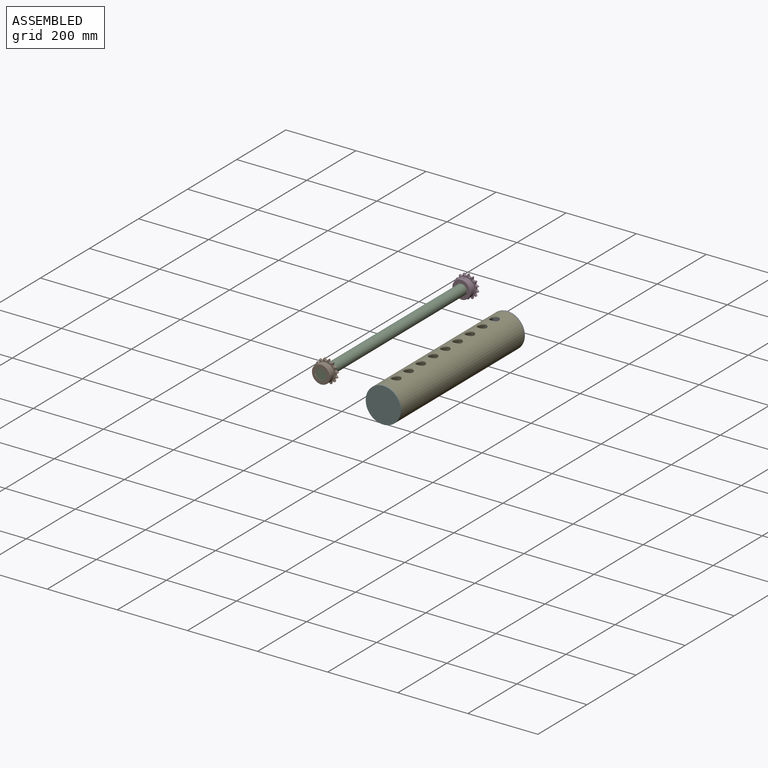
[diagram: assembled view]
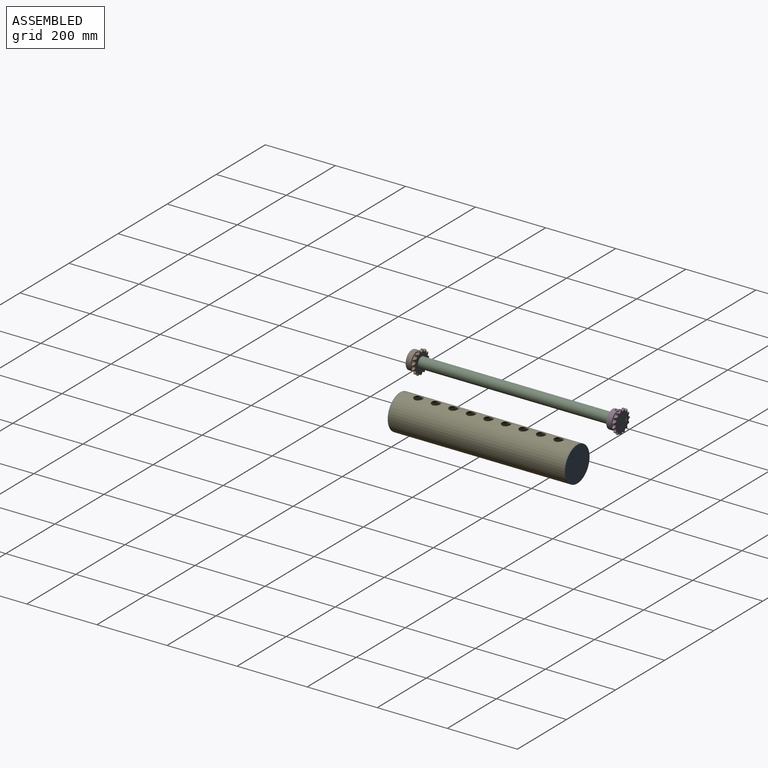
[diagram: assembled view, second angle]
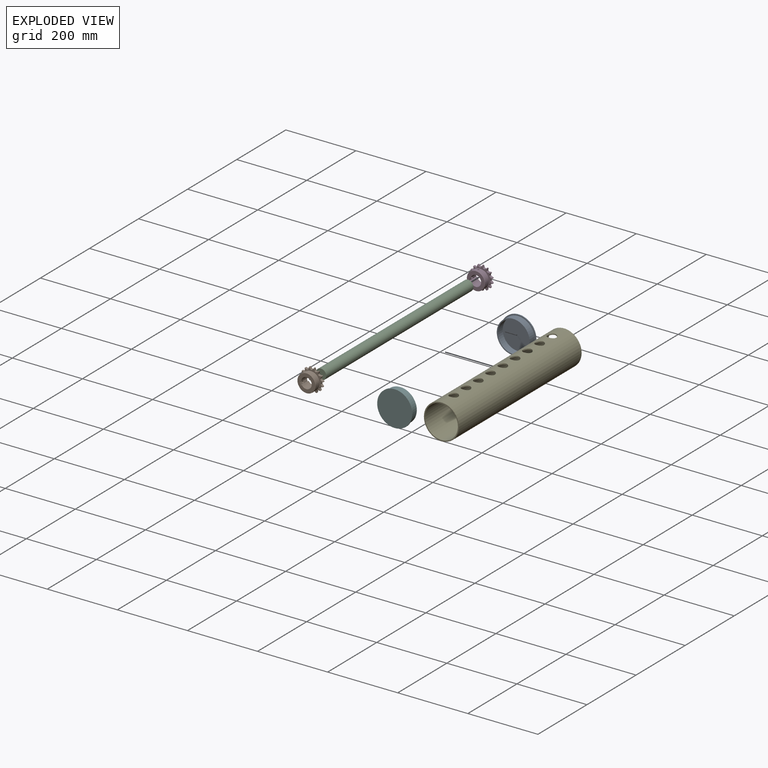
[diagram: exploded view]
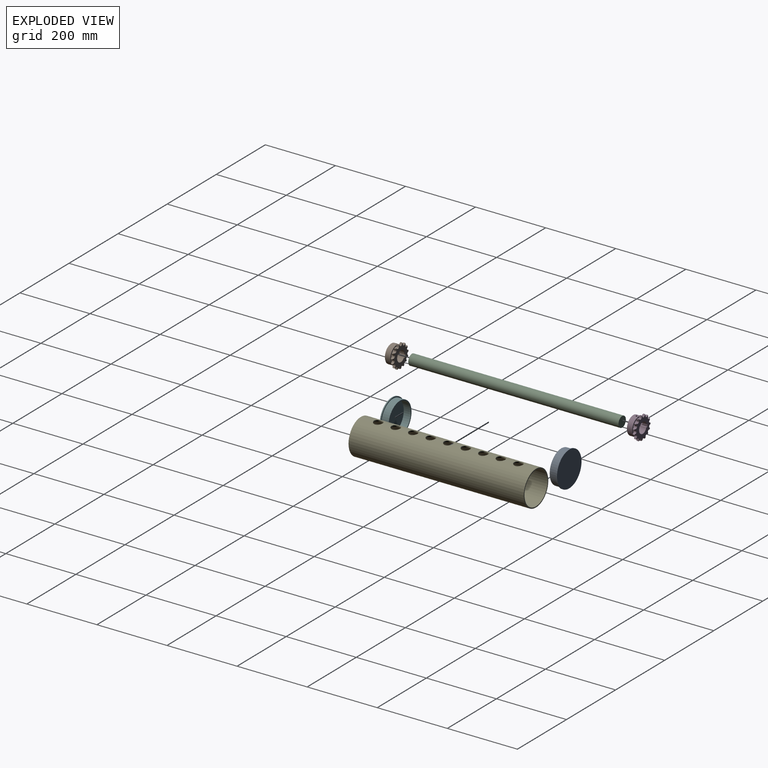
[diagram: exploded view, second angle]
ASSEMBLY  parts=6 mates=4
PART A: 7 faces, bbox 100x23x100 mm
  f0: cylinder r=50mm len=100mm, axis (0,1,0), area 942.5mm2, adj f1,f2
  f1: plane 100x100mm, normal (0,-1,0), area 914.2mm2, adj f0,f4
  f2: plane 100x100mm, normal (0,1,0), area 7854mm2, adj f0
  f3: cylinder r=44mm len=88mm, axis (0,1,0), area 5529.2mm2, adj f5,f6
  f4: cylinder r=47mm len=94mm, axis (0,1,0), area 5906.2mm2, adj f1,f5
  f5: plane 94x94mm, normal (0,-1,0), area 857.7mm2, adj f3,f4
  f6: plane 88x88mm, normal (0,-1,0), area 6082.1mm2, adj f3
PART B: 138 faces, bbox 28.1x69.7x69.4 mm
  f0: cylinder r=26mm len=52mm, axis (-1,0,0), area 2412.4mm2, adj f6,f24,f108,f109
  f1: cone r=32.95mm half-angle=61.6deg, axis (1,0,0), area 6.8mm2, adj f13,f18,f20,f27
  f2: plane 7.26x2.4mm, normal (0,-0.39,0.92), area 15.2mm2, adj f3,f5,f105,f111
  f3: plane 7.2x2.94mm, normal (0,-0.48,0.88), area 24.1mm2, adj f2,f4,f20,f80
  f4: plane 61.01x60.71mm, normal (1,0,0), area 921.5mm2, adj f3,f5,f12,f25,f26,f28,f30,f32
  f5: torus R=25.6mm, axis (1,0,0), area 6.8mm2, adj f2,f4,f11,f105
  f6: cone r=2.46mm half-angle=45deg, axis (0,0,1), area 10mm2, adj f0,f8
  f7: cylinder r=2.46mm len=10.66mm, axis (0,-1,0), area 164.7mm2, adj f21,f24
  f8: cylinder r=2.46mm len=6.62mm, axis (0,0,-1), area 102.2mm2, adj f6,f9
  f9: cone r=3mm half-angle=45deg, axis (0,0,-1), area 13.1mm2, adj f8,f17
  f10: plane 7.26x2.15mm, normal (0,-0.57,-0.82), area 15.2mm2, adj f79,f113,f121,f122
  f11: plane 7.26x2.56mm, normal (0,-0.19,-0.98), area 15.2mm2, adj f5,f12,f105,f111
  f12: plane 7.2x3.21mm, normal (0,-0.28,-0.96), area 24.1mm2, adj f4,f11,f20,f104
  f13: plane 7.26x1.91mm, normal (0,-0.73,0.68), area 15.2mm2, adj f1,f18,f25,f26
  f14: cone r=15mm half-angle=45deg, axis (1,0,0), area 43.6mm2, adj f15,f16,f21,f110
  f15: plane 28x3.84mm, normal (0,-1,0), area 107.5mm2, adj f14,f17,f19,f20,f21,f110
  f16: plane 28x3.84mm, normal (0,1,0), area 107.5mm2, adj f14,f17,f19,f20,f21,f110
  f17: plane 28x8mm, normal (0,0,-1), area 195.7mm2, adj f9,f15,f16,f20,f110
  f18: cylinder r=32.95mm len=4.6mm, axis (-1,0,0), area 7.9mm2, adj f1,f13,f25,f27
  f19: cone r=15.35mm half-angle=45deg, axis (-1,0,0), area 43.6mm2, adj f15,f16,f20,f21
  f20: plane 61.01x60.71mm, normal (-1,0,0), area 1746.3mm2, adj f1,f3,f12,f15,f16,f17,f19,f26
  f21: cylinder r=15mm len=30mm, axis (-1,0,0), area 2332.2mm2, adj f7,f14,f15,f16,f19
  f22: cylinder r=32.95mm len=4.6mm, axis (-1,0,0), area 7.9mm2, adj f65,f67,f106,f112
  f23: cylinder r=32.95mm len=4.6mm, axis (-1,0,0), area 7.9mm2, adj f29,f31,f90,f91
  f24: cone r=2.46mm half-angle=45deg, axis (0,1,0), area 11.6mm2, adj f0,f7
  f25: torus R=25.6mm, axis (1,0,0), area 6.8mm2, adj f4,f13,f18,f27
  f26: plane 7.2x2.66mm, normal (0,-0.79,0.61), area 24.1mm2, adj f4,f13,f20,f104
  f27: plane 7.26x2.53mm, normal (0,0.23,-0.97), area 15.2mm2, adj f1,f18,f25,f28
  f28: plane 7.2x3.32mm, normal (0,0.13,-0.99), area 24.1mm2, adj f4,f20,f27,f103
  f29: plane 7.26x2.46mm, normal (0,-0.94,0.33), area 15.2mm2, adj f23,f30,f90,f91
  f30: plane 7.2x3.25mm, normal (0,-0.97,0.23), area 24.1mm2, adj f4,f20,f29,f103
  f31: plane 7.26x2.08mm, normal (0,0.6,-0.8), area 15.2mm2, adj f23,f32,f90,f91
  f32: plane 7.2x2.85mm, normal (0,0.52,-0.85), area 24.1mm2, adj f4,f20,f31,f102
  f33: plane 7.26x2.59mm, normal (0,-1,-0.08), area 15.2mm2, adj f34,f123,f127,f137
  f34: plane 7.2x3.29mm, normal (0,-0.98,-0.18), area 24.1mm2, adj f4,f20,f33,f102
  f35: plane 7.26x2.29mm, normal (0,0.88,-0.48), area 15.2mm2, adj f36,f123,f127,f137
  f36: plane 7.2x2.76mm, normal (0,0.82,-0.57), area 24.1mm2, adj f4,f20,f35,f101
  f37: plane 7.26x2.29mm, normal (0,-0.88,-0.48), area 15.2mm2, adj f38,f128,f130,f131
  f38: plane 7.2x2.76mm, normal (0,-0.82,-0.57), area 24.1mm2, adj f4,f20,f37,f101
  f39: plane 7.26x2.59mm, normal (0,1,-0.08), area 15.2mm2, adj f40,f128,f130,f131
  f40: plane 7.2x3.29mm, normal (0,0.98,-0.18), area 24.1mm2, adj f4,f20,f39,f100
  f41: plane 7.26x2.08mm, normal (0,-0.6,-0.8), area 15.2mm2, adj f42,f129,f132,f133
  f42: plane 7.2x2.85mm, normal (0,-0.52,-0.85), area 24.1mm2, adj f4,f20,f41,f100
  f43: plane 7.26x2.46mm, normal (0,0.94,0.33), area 15.2mm2, adj f44,f129,f132,f133
  f44: plane 7.2x3.25mm, normal (0,0.97,0.23), area 24.1mm2, adj f4,f20,f43,f99
  f45: plane 7.26x2.53mm, normal (0,-0.23,-0.97), area 15.2mm2, adj f46,f92,f93,f134
  f46: plane 7.2x3.32mm, normal (0,-0.13,-0.99), area 24.1mm2, adj f4,f20,f45,f99
  f47: plane 7.26x1.91mm, normal (0,0.73,0.68), area 15.2mm2, adj f48,f92,f93,f134
  f48: plane 7.2x2.66mm, normal (0,0.79,0.61), area 24.1mm2, adj f4,f20,f47,f94
  f49: plane 7.26x2.56mm, normal (0,0.19,-0.98), area 15.2mm2, adj f50,f95,f96,f97
  f50: plane 7.2x3.21mm, normal (0,0.28,-0.96), area 24.1mm2, adj f4,f20,f49,f94
  f51: plane 7.26x2.4mm, normal (0,0.39,0.92), area 15.2mm2, adj f52,f95,f96,f97
  f52: plane 7.2x2.94mm, normal (0,0.48,0.88), area 24.1mm2, adj f4,f20,f51,f98
  f53: plane 7.26x2.15mm, normal (0,0.57,-0.82), area 15.2mm2, adj f54,f84,f85,f86
  f54: plane 7.2x2.54mm, normal (0,0.65,-0.76), area 24.1mm2, adj f4,f20,f53,f98
  f55: plane 7.26x2.6mm, normal (0,-0.02,1), area 15.2mm2, adj f56,f84,f85,f86
  f56: plane 7.2x3.33mm, normal (0,0.08,1), area 24.1mm2, adj f4,f20,f55,f135
  f57: plane 7.26x2.23mm, normal (0,0.86,-0.52), area 15.2mm2, adj f58,f87,f88,f126
  f58: plane 7.2x3.02mm, normal (0,0.9,-0.43), area 24.1mm2, adj f4,f20,f57,f135
  f59: plane 7.26x2.36mm, normal (0,-0.43,0.9), area 15.2mm2, adj f60,f87,f88,f126
  f60: plane 7.2x3.15mm, normal (0,-0.33,0.94), area 24.1mm2, adj f4,f20,f59,f89
  f61: plane 7.26x2.58mm, normal (0,0.99,-0.13), area 15.2mm2, adj f62,f81,f82,f83
  f62: plane 7.2x3.34mm, normal (0,1,-0.03), area 24.1mm2, adj f4,f20,f61,f89
  f63: plane 7.26x1.98mm, normal (0,-0.76,0.65), area 15.2mm2, adj f64,f81,f82,f83
  f64: plane 7.2x2.43mm, normal (0,-0.69,0.73), area 24.1mm2, adj f4,f20,f63,f136
  f65: plane 7.26x2.49mm, normal (0,0.96,0.29), area 15.2mm2, adj f22,f66,f106,f112
  f66: plane 7.2x3.09mm, normal (0,0.92,0.38), area 24.1mm2, adj f4,f20,f65,f136
  f67: plane 7.26x2.49mm, normal (0,-0.96,0.29), area 15.2mm2, adj f22,f68,f106,f112
  f68: plane 7.2x3.09mm, normal (0,-0.92,0.38), area 24.1mm2, adj f4,f20,f67,f124
  f69: plane 7.26x1.98mm, normal (0,0.76,0.65), area 15.2mm2, adj f70,f115,f116,f125
  f70: plane 7.2x2.43mm, normal (0,0.69,0.73), area 24.1mm2, adj f4,f20,f69,f124
  f71: plane 7.26x2.58mm, normal (0,-0.99,-0.13), area 15.2mm2, adj f72,f115,f116,f125
  f72: plane 7.2x3.34mm, normal (0,-1,-0.03), area 24.1mm2, adj f4,f20,f71,f117
  f73: plane 7.26x2.36mm, normal (0,0.43,0.9), area 15.2mm2, adj f74,f114,f118,f119
  f74: plane 7.2x3.15mm, normal (0,0.33,0.94), area 24.1mm2, adj f4,f20,f73,f117
  f75: plane 7.26x2.23mm, normal (0,-0.86,-0.52), area 15.2mm2, adj f76,f114,f118,f119
  f76: plane 7.2x3.02mm, normal (0,-0.9,-0.43), area 24.1mm2, adj f4,f20,f75,f120
  f77: plane 7.26x2.6mm, normal (0,0.02,1), area 15.2mm2, adj f78,f113,f121,f122
  f78: plane 7.2x3.33mm, normal (0,-0.08,1), area 24.1mm2, adj f4,f20,f77,f120
  f79: plane 7.2x2.54mm, normal (0,-0.65,-0.76), area 24.1mm2, adj f4,f10,f20,f80
  f80: cylinder r=4.25mm len=7.2mm, axis (1,0,0), area 45.6mm2, adj f3,f4,f20,f79
  f81: cone r=32.95mm half-angle=61.6deg, axis (1,0,0), area 6.8mm2, adj f20,f61,f63,f82
  f82: cylinder r=32.95mm len=4.6mm, axis (-1,0,0), area 7.9mm2, adj f61,f63,f81,f83
  f83: torus R=25.6mm, axis (1,0,0), area 6.8mm2, adj f4,f61,f63,f82
  f84: torus R=25.6mm, axis (1,0,0), area 6.8mm2, adj f4,f53,f55,f85
  f85: cylinder r=32.95mm len=4.6mm, axis (-1,0,0), area 7.9mm2, adj f53,f55,f84,f86
  f86: cone r=32.95mm half-angle=61.6deg, axis (1,0,0), area 6.8mm2, adj f20,f53,f55,f85
  f87: cylinder r=32.95mm len=4.6mm, axis (-1,0,0), area 7.9mm2, adj f57,f59,f88,f126
  f88: cone r=32.95mm half-angle=61.6deg, axis (1,0,0), area 6.8mm2, adj f20,f57,f59,f87
  f89: cylinder r=4.25mm len=7.2mm, axis (1,0,0), area 45.6mm2, adj f4,f20,f60,f62
  f90: torus R=25.6mm, axis (1,0,0), area 6.8mm2, adj f4,f23,f29,f31
  f91: cone r=32.95mm half-angle=61.6deg, axis (1,0,0), area 6.8mm2, adj f20,f23,f29,f31
  f92: cylinder r=32.95mm len=4.6mm, axis (-1,0,0), area 7.9mm2, adj f45,f47,f93,f134
  f93: cone r=32.95mm half-angle=61.6deg, axis (1,0,0), area 6.8mm2, adj f20,f45,f47,f92
  f94: cylinder r=4.25mm len=7.2mm, axis (1,0,0), area 45.6mm2, adj f4,f20,f48,f50
  f95: torus R=25.6mm, axis (1,0,0), area 6.8mm2, adj f4,f49,f51,f96
  f96: cylinder r=32.95mm len=4.6mm, axis (-1,0,0), area 7.9mm2, adj f49,f51,f95,f97
  f97: cone r=32.95mm half-angle=61.6deg, axis (1,0,0), area 6.8mm2, adj f20,f49,f51,f96
  f98: cylinder r=4.25mm len=7.2mm, axis (1,0,0), area 45.6mm2, adj f4,f20,f52,f54
  f99: cylinder r=4.25mm len=7.2mm, axis (1,0,0), area 45.6mm2, adj f4,f20,f44,f46
  f100: cylinder r=4.25mm len=7.2mm, axis (1,0,0), area 45.6mm2, adj f4,f20,f40,f42
  f101: cylinder r=4.25mm len=7.2mm, axis (1,0,0), area 45.6mm2, adj f4,f20,f36,f38
  f102: cylinder r=4.25mm len=7.2mm, axis (1,0,0), area 45.6mm2, adj f4,f20,f32,f34
  f103: cylinder r=4.25mm len=7.2mm, axis (1,0,0), area 45.6mm2, adj f4,f20,f28,f30
  f104: cylinder r=4.25mm len=7.2mm, axis (1,0,0), area 45.6mm2, adj f4,f12,f20,f26
  f105: cylinder r=32.95mm len=4.6mm, axis (-1,0,0), area 7.9mm2, adj f2,f5,f11,f111
  f106: torus R=25.6mm, axis (1,0,0), area 6.8mm2, adj f4,f22,f65,f67
  f107: cylinder r=22.5mm len=45mm, axis (-1,0,0), area 706.9mm2, adj f4,f108
  f108: plane 52x52mm, normal (-1,0,0), area 533.3mm2, adj f0,f107
  f109: cone r=25.29mm half-angle=45deg, axis (-1,0,0), area 161.1mm2, adj f0,f110
  f110: plane 50.59x50.59mm, normal (1,0,0), area 1244.2mm2, adj f14,f15,f16,f17,f109
  f111: cone r=32.95mm half-angle=61.6deg, axis (1,0,0), area 6.8mm2, adj f2,f11,f20,f105
  f112: cone r=32.95mm half-angle=61.6deg, axis (1,0,0), area 6.8mm2, adj f20,f22,f65,f67
  f113: cone r=32.95mm half-angle=61.6deg, axis (1,0,0), area 6.8mm2, adj f10,f20,f77,f122
  f114: cone r=32.95mm half-angle=61.6deg, axis (1,0,0), area 6.8mm2, adj f20,f73,f75,f119
  f115: cylinder r=32.95mm len=4.6mm, axis (-1,0,0), area 7.9mm2, adj f69,f71,f116,f125
  f116: cone r=32.95mm half-angle=61.6deg, axis (1,0,0), area 6.8mm2, adj f20,f69,f71,f115
  f117: cylinder r=4.25mm len=7.2mm, axis (1,0,0), area 45.6mm2, adj f4,f20,f72,f74
  f118: torus R=25.6mm, axis (1,0,0), area 6.8mm2, adj f4,f73,f75,f119
  f119: cylinder r=32.95mm len=4.6mm, axis (-1,0,0), area 7.9mm2, adj f73,f75,f114,f118
  f120: cylinder r=4.25mm len=7.2mm, axis (1,0,0), area 45.6mm2, adj f4,f20,f76,f78
  f121: torus R=25.6mm, axis (1,0,0), area 6.8mm2, adj f4,f10,f77,f122
  f122: cylinder r=32.95mm len=4.6mm, axis (-1,0,0), area 7.9mm2, adj f10,f77,f113,f121
  f123: torus R=25.6mm, axis (1,0,0), area 6.8mm2, adj f4,f33,f35,f137
  f124: cylinder r=4.25mm len=7.2mm, axis (1,0,0), area 45.6mm2, adj f4,f20,f68,f70
  f125: torus R=25.6mm, axis (1,0,0), area 6.8mm2, adj f4,f69,f71,f115
  f126: torus R=25.6mm, axis (1,0,0), area 6.8mm2, adj f4,f57,f59,f87
  f127: cone r=32.95mm half-angle=61.6deg, axis (1,0,0), area 6.8mm2, adj f20,f33,f35,f137
  f128: cone r=32.95mm half-angle=61.6deg, axis (1,0,0), area 6.8mm2, adj f20,f37,f39,f131
  f129: cone r=32.95mm half-angle=61.6deg, axis (1,0,0), area 6.8mm2, adj f20,f41,f43,f133
  f130: torus R=25.6mm, axis (1,0,0), area 6.8mm2, adj f4,f37,f39,f131
  f131: cylinder r=32.95mm len=4.6mm, axis (-1,0,0), area 7.9mm2, adj f37,f39,f128,f130
  f132: torus R=25.6mm, axis (1,0,0), area 6.8mm2, adj f4,f41,f43,f133
  f133: cylinder r=32.95mm len=4.6mm, axis (-1,0,0), area 7.9mm2, adj f41,f43,f129,f132
  f134: torus R=25.6mm, axis (1,0,0), area 6.8mm2, adj f4,f45,f47,f92
  f135: cylinder r=4.25mm len=7.2mm, axis (1,0,0), area 45.6mm2, adj f4,f20,f56,f58
  f136: cylinder r=4.25mm len=7.2mm, axis (1,0,0), area 45.6mm2, adj f4,f20,f64,f66
  f137: cylinder r=32.95mm len=4.6mm, axis (-1,0,0), area 7.9mm2, adj f33,f35,f123,f127
PART C: 3 faces, bbox 30x600x30 mm
  f0: cylinder r=15mm len=600mm, axis (0,1,0), area 56548.7mm2, adj f1,f2
  f1: plane 30x30mm, normal (0,-1,0), area 706.9mm2, adj f0
  f2: plane 30x30mm, normal (0,1,0), area 706.9mm2, adj f0
PART D: same geometry as B
PART E: 13 faces, bbox 100x500x100 mm
  f0: cylinder r=47mm len=500mm, axis (0,1,0), area 143192.2mm2, adj f2,f3,f4,f5,f6,f7,f8,f9
  f1: cylinder r=50mm len=500mm, axis (0,1,0), area 152622.2mm2, adj f2,f3,f4,f5,f6,f7,f8,f9
  f2: plane 100x100mm, normal (0,-1,0), area 914.2mm2, adj f0,f1
  f3: plane 100x100mm, normal (0,1,0), area 914.2mm2, adj f0,f1
  f4: cylinder r=12.5mm len=25mm, axis (0,0,1), area 239.7mm2, adj f0,f1
  f5: cylinder r=12.5mm len=25mm, axis (0,0,1), area 239.7mm2, adj f0,f1
  f6: cylinder r=12.5mm len=25mm, axis (0,0,1), area 239.7mm2, adj f0,f1
  f7: cylinder r=12.5mm len=25mm, axis (0,0,1), area 239.7mm2, adj f0,f1
  f8: cylinder r=12.5mm len=25mm, axis (0,0,1), area 239.7mm2, adj f0,f1
  f9: cylinder r=12.5mm len=25mm, axis (0,0,1), area 239.7mm2, adj f0,f1
  f10: cylinder r=12.5mm len=25mm, axis (0,0,1), area 239.7mm2, adj f0,f1
  f11: cylinder r=12.5mm len=25mm, axis (0,0,1), area 239.7mm2, adj f0,f1
  f12: cylinder r=12.5mm len=25mm, axis (0,0,1), area 239.7mm2, adj f0,f1
PART F: same geometry as A
PLACE A t=(-66.38,84.2,-138.06)mm
PLACE B rot(axis=(0.63,-0.63,-0.45),131.2deg) t=(-201.6,-454.75,-71.59)mm
PLACE C t=(-201.6,117.6,-71.59)mm fixed
PLACE D rot(axis=(0.58,-0.58,-0.58),120deg) t=(-201.6,117.6,-71.59)mm
PLACE E rot(axis=(1,0,0),180deg) t=(-66.38,-418.8,-138.06)mm
PLACE F rot(axis=(1,0,0),180deg) t=(-66.38,-421.8,-138.06)mm
MATE revolute B.f0 <-> C.f0  axis (0,1,0) through (-201.6,-482.4,-71.59)mm
MATE fastened E.f0 <-> A.f0  axis (0,1,0) through (-66.38,81.2,-138.06)mm
MATE fastened F.f0 <-> E.f0  axis (0,1,0) through (-66.38,-418.8,-138.06)mm
MATE fastened C.f0 <-> D.f0  axis (0,1,0) through (-201.6,117.6,-71.59)mm
